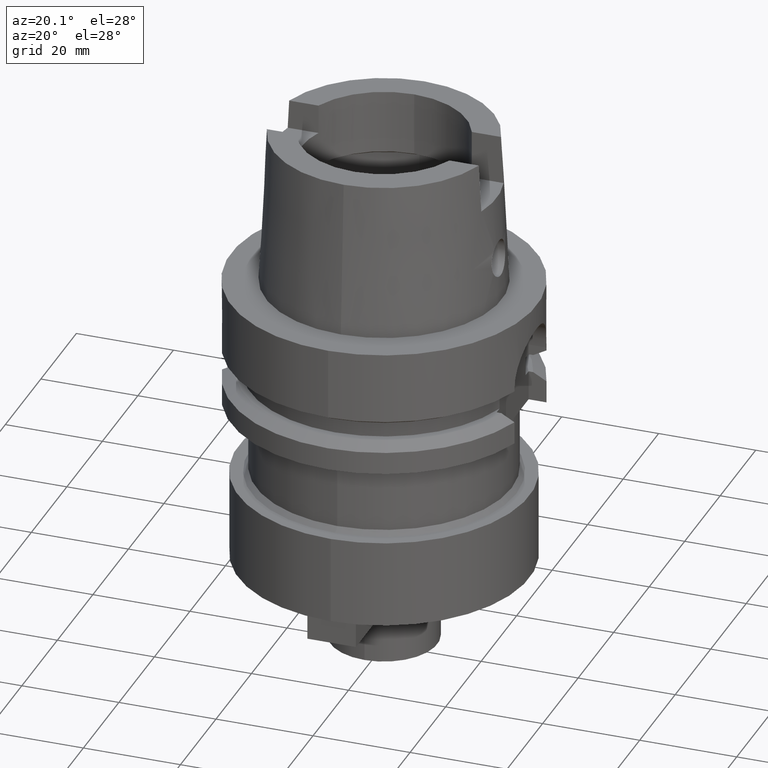
[diagram: clean part render]
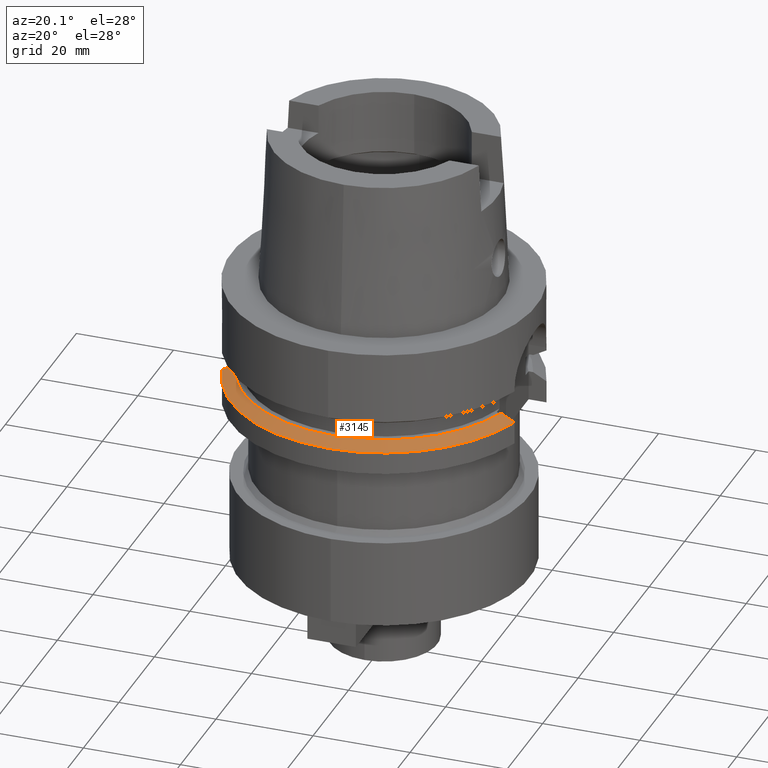
[diagram: same view with one face highlighted and labeled with its STEP entity id]
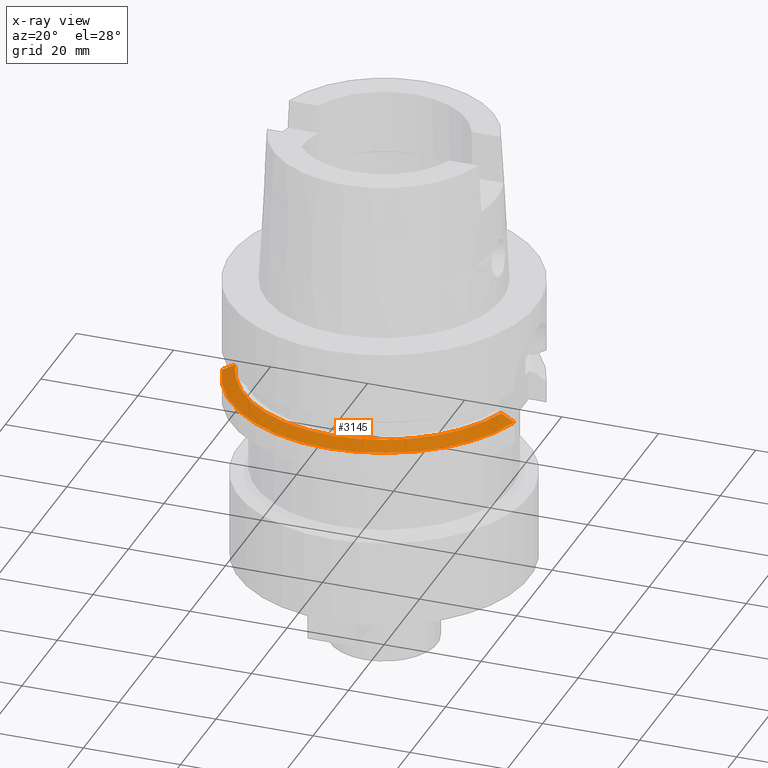
[diagram: x-ray of the same camera — body ghosted, the highlighted face saturated]
A machine part, auxiliary view. The second image highlights one B-rep face of the part: STEP entity #3145.
The next image is the same camera in x-ray: the body ghosted, the highlighted face saturated — about 0% of this face is hidden behind the body in this view.
In plain terms, the highlighted conical surface has half-angle 60 deg.
Its self-contained STEP definition (entity closure, byte-faithful):
#883=CARTESIAN_POINT('',(3.018691774019E1,-8.999999852611E0,-2.137749788598E1));
#884=CARTESIAN_POINT('',(2.988425157127E1,-8.999999852611E0,-2.121003773786E1));
#885=CARTESIAN_POINT('',(2.927875686503E1,-8.999999971282E0,-2.087540631778E1));
#886=CARTESIAN_POINT('',(2.836989113750E1,-9.000000321597E0,-2.037459687497E1));
#887=CARTESIAN_POINT('',(2.776361428252E1,-8.999999268753E0,-2.004137405531E1));
#888=CARTESIAN_POINT('',(2.746036359119E1,-8.999999268753E0,-1.9875E1));
#921=CARTESIAN_POINT('',(-2.776816327633E1,-8.000000141248E0,-1.9875E1));
#922=CARTESIAN_POINT('',(-2.806829963972E1,-8.000000141248E0,
-2.004151120776E1));
#923=CARTESIAN_POINT('',(-2.866838156101E1,-7.999999997238E0,
-2.037486224143E1));
#924=CARTESIAN_POINT('',(-2.956806963548E1,-7.999999797796E0,
-2.087567850056E1));
#925=CARTESIAN_POINT('',(-3.016752196408E1,-8.000000473651E0,
-2.121015963672E1));
#926=CARTESIAN_POINT('',(-3.046719534879E1,-8.000000473651E0,
-2.137750337467E1));
#961=CARTESIAN_POINT('',(0.E0,0.E0,-1.9875E1));
#962=DIRECTION('',(0.E0,0.E0,-1.E0));
#963=DIRECTION('',(9.502643111725E-1,-3.114446000686E-1,0.E0));
#964=AXIS2_PLACEMENT_3D('',#961,#962,#963);
#969=CARTESIAN_POINT('',(0.E0,0.E0,-1.9875E1));
#970=DIRECTION('',(0.E0,0.E0,-1.E0));
#971=DIRECTION('',(0.E0,-1.E0,0.E0));
#972=AXIS2_PLACEMENT_3D('',#969,#970,#971);
#991=CARTESIAN_POINT('',(0.E0,0.E0,-2.137749907476E1));
#992=DIRECTION('',(0.E0,0.E0,-1.E0));
#993=DIRECTION('',(9.583148474999E-1,-2.857142857143E-1,0.E0));
#994=AXIS2_PLACEMENT_3D('',#991,#992,#993);
#999=CARTESIAN_POINT('',(0.E0,0.E0,-2.137749907476E1));
#1000=DIRECTION('',(0.E0,0.E0,-1.E0));
#1001=DIRECTION('',(0.E0,-1.E0,0.E0));
#1002=AXIS2_PLACEMENT_3D('',#999,#1000,#1001);
#2359=CARTESIAN_POINT('',(-3.046719534879E1,-8.000000473651E0,
-2.137750337467E1));
#2360=VERTEX_POINT('',#2359);
#2361=CARTESIAN_POINT('',(3.018691769625E1,-9.E0,-2.137749907476E1));
#2362=CARTESIAN_POINT('',(0.E0,-3.15E1,-2.137749907476E1));
#2363=VERTEX_POINT('',#2361);
#2364=VERTEX_POINT('',#2362);
#2375=CARTESIAN_POINT('',(-2.776816327633E1,-8.000000141248E0,-1.9875E1));
#2376=VERTEX_POINT('',#2375);
#2409=CARTESIAN_POINT('',(0.E0,-2.889759526419E1,-1.9875E1));
#2410=VERTEX_POINT('',#2409);
#2411=CARTESIAN_POINT('',(2.746035345827E1,-9.E0,-1.9875E1));
#2412=VERTEX_POINT('',#2411);
#3132=CARTESIAN_POINT('',(0.E0,0.E0,-2.062624953738E1));
#3133=DIRECTION('',(0.E0,0.E0,-1.E0));
#3134=DIRECTION('',(0.E0,-1.E0,0.E0));
#3135=AXIS2_PLACEMENT_3D('',#3132,#3133,#3134);
#3136=CONICAL_SURFACE('',#3135,3.019879763210E1,6.E1);
#3137=ORIENTED_EDGE('',*,*,#3092,.F.);
#3138=ORIENTED_EDGE('',*,*,#3112,.F.);
#3139=ORIENTED_EDGE('',*,*,#3110,.F.);
#3140=ORIENTED_EDGE('',*,*,#3058,.F.);
#3141=ORIENTED_EDGE('',*,*,#3075,.T.);
#3142=ORIENTED_EDGE('',*,*,#3073,.T.);
#3143=EDGE_LOOP('',(#3137,#3138,#3139,#3140,#3141,#3142));
#3144=FACE_OUTER_BOUND('',#3143,.F.);
#889=B_SPLINE_CURVE_WITH_KNOTS('',3,(#883,#884,#885,#886,#887,#888),
.UNSPECIFIED.,.F.,.F.,(4,1,1,4),(0.E0,3.333333333333E-1,6.666666666667E-1,1.E0),
.UNSPECIFIED.);
#927=B_SPLINE_CURVE_WITH_KNOTS('',3,(#921,#922,#923,#924,#925,#926),
.UNSPECIFIED.,.F.,.F.,(4,1,1,4),(0.E0,3.333333333333E-1,6.666666666667E-1,1.E0),
.UNSPECIFIED.);
#965=CIRCLE('',#964,2.889759526419E1);
#973=CIRCLE('',#972,2.889759526419E1);
#995=CIRCLE('',#994,3.15E1);
#1003=CIRCLE('',#1002,3.15E1);
#3058=EDGE_CURVE('',#2363,#2412,#889,.T.);
#3073=EDGE_CURVE('',#2364,#2360,#1003,.T.);
#3075=EDGE_CURVE('',#2363,#2364,#995,.T.);
#3092=EDGE_CURVE('',#2376,#2360,#927,.T.);
#3110=EDGE_CURVE('',#2412,#2410,#965,.T.);
#3112=EDGE_CURVE('',#2410,#2376,#973,.T.);
#3145=ADVANCED_FACE('',(#3144),#3136,.T.);